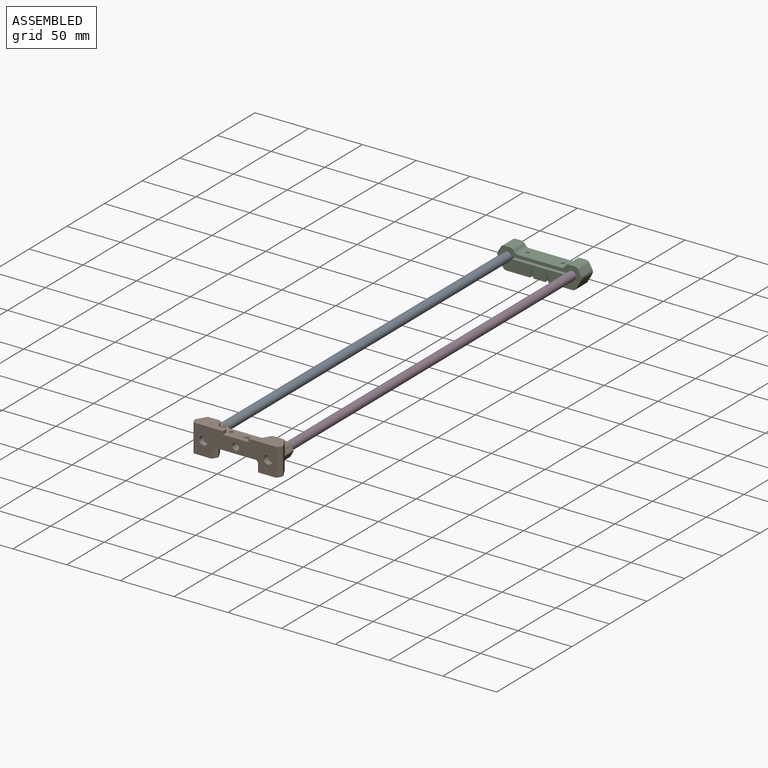
[diagram: assembled view]
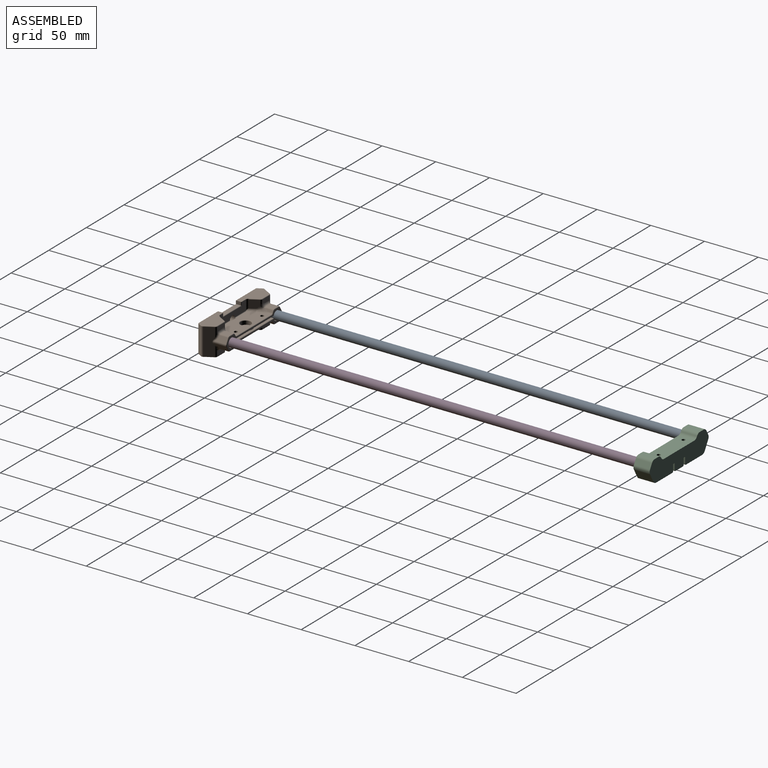
[diagram: assembled view, second angle]
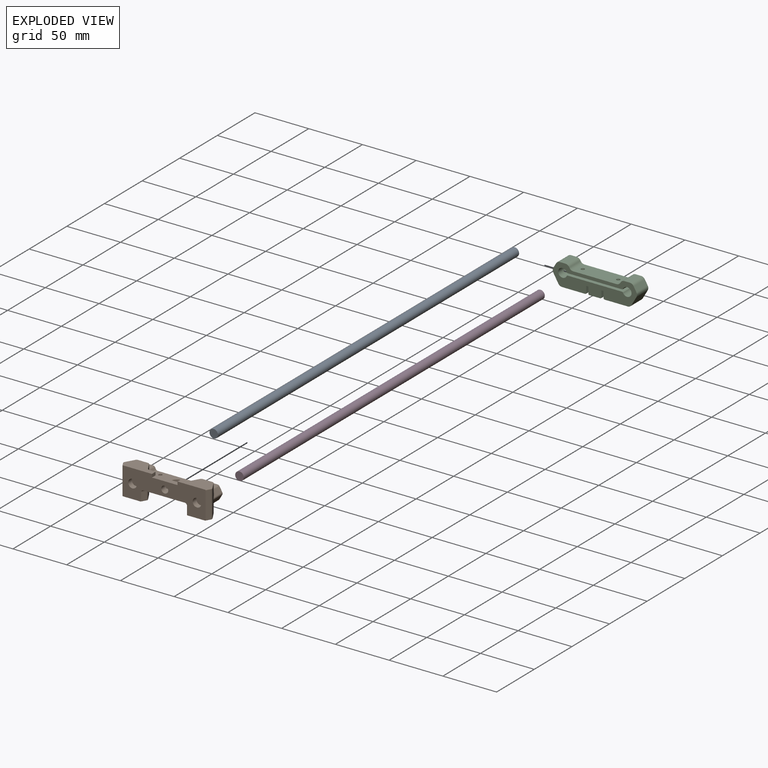
[diagram: exploded view]
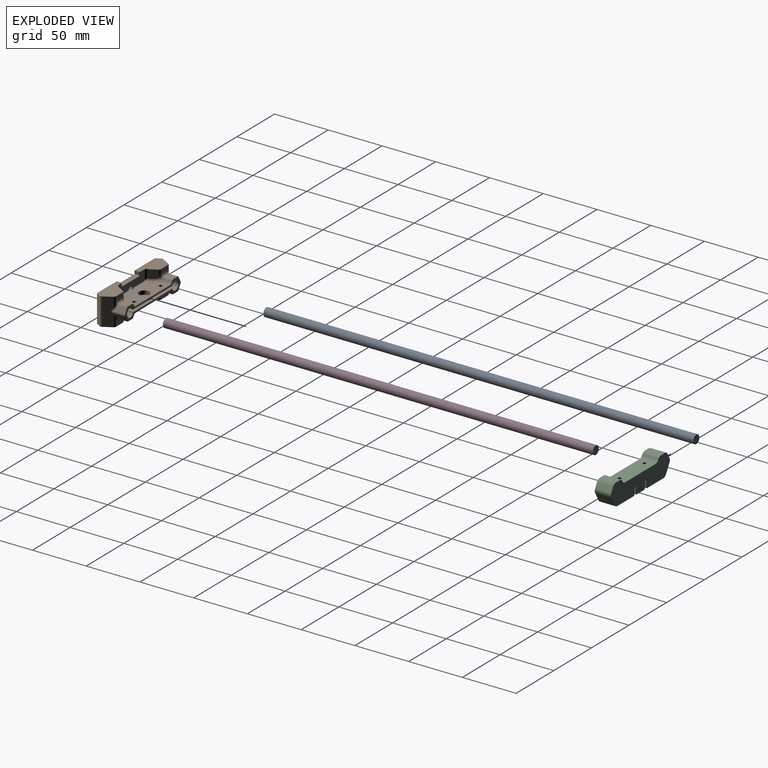
[diagram: exploded view, second angle]
ASSEMBLY  parts=4 mates=3
PART A: 3 faces, bbox 8x400x8 mm
  f0: plane 8x8mm, normal (0,-1,0), area 50.3mm2, adj f1
  f1: cylinder r=4mm len=400mm, axis (0,-1,0), area 10053.1mm2, adj f0,f2
  f2: plane 8x8mm, normal (0,1,0), area 50.3mm2, adj f1
PART B: 242 faces, bbox 83.3x26.5x28.1 mm
  f0: cylinder r=0.5mm len=12.6mm, axis (-1,0,0), area 9.9mm2, adj f4,f173,f178,f240
  f1: plane 77.81x26.49mm, normal (0,-1,0), area 1380.2mm2, adj f5,f6,f13,f14,f15,f16,f54,f58
  f2: cylinder r=0.5mm len=3.5mm, axis (0,0,1), area 2.6mm2, adj f4,f6,f14,f57
  f3: cylinder r=0.5mm len=3.5mm, axis (0,0,-1), area 2.6mm2, adj f4,f5,f15,f57
  f4: plane 34.6x9.5mm, normal (0,1,0), area 228.6mm2, adj f0,f2,f3,f9,f12,f14,f15,f57
  f5: plane 4.5x3mm, normal (-1,0,0), area 13.5mm2, adj f1,f3,f15,f58
  f6: plane 4.5x3mm, normal (1,0,0), area 13.5mm2, adj f1,f2,f14,f58
  f7: bspline ~1.75x1.67mm, area 0mm2, adj f8,f9,f14
  f8: bspline ~1.25x1.15mm, area 0.7mm2, adj f7,f14,f97,f107
  f9: cylinder r=2mm len=9.3mm, axis (0,0,-1), area 18.1mm2, adj f4,f7,f14,f107,f176
  f10: bspline ~1.75x1.67mm, area 0mm2, adj f11,f12,f15
  f11: bspline ~1.25x1.15mm, area 0.7mm2, adj f10,f15,f108,f115
  f12: cylinder r=2mm len=9.3mm, axis (0,0,-1), area 18.1mm2, adj f4,f10,f15,f115,f172
  f13: plane 21.48x14.5mm, normal (0,0,-1), area 251.1mm2, adj f1,f63,f64,f65,f66,f67,f68,f69
  f14: plane 29.57x14.58mm, normal (0,0,1), area 298.4mm2, adj f1,f2,f4,f6,f7,f8,f9,f97
  f15: plane 28.32x14.58mm, normal (0,0,1), area 292.1mm2, adj f1,f3,f4,f5,f10,f11,f12,f108
  f16: plane 21.48x14.5mm, normal (0,0,-1), area 251.1mm2, adj f1,f80,f81,f82,f83,f84,f85,f86
  f17: bspline ~2.89x1.69mm, area 3.3mm2, adj f18,f212,f214,f227
  f18: bspline ~5.17x2.2mm, area 5.8mm2, adj f17,f19,f215,f227
  f19: bspline ~5.17x2.66mm, area 9.3mm2, adj f18,f20,f54,f215
  f20: bspline ~5.25x4.76mm, area 11.2mm2, adj f19,f21,f54,f216
  f21: bspline ~5.14x3.53mm, area 9.4mm2, adj f20,f22,f77,f216
  f22: bspline ~5.69x2.51mm, area 8.3mm2, adj f21,f23,f76,f77
  f23: bspline ~5.69x2.03mm, area 6mm2, adj f22,f24,f75,f76
  f24: bspline ~4.33x3.66mm, area 7.6mm2, adj f23,f25,f75,f213
  f25: bspline ~4.33x1.9mm, area 5.1mm2, adj f24,f212,f213,f226
  f26: bspline ~4.33x3.66mm, area 7.6mm2, adj f27,f117,f199,f202
  f27: bspline ~5.69x2.03mm, area 6mm2, adj f26,f28,f116,f117
  f28: bspline ~5.69x2.51mm, area 8.3mm2, adj f27,f29,f115,f116
  f29: bspline ~5.14x3.53mm, area 9.4mm2, adj f28,f30,f115,f179
  f30: bspline ~5.25x4.76mm, area 11.2mm2, adj f29,f31,f178,f179
  f31: bspline ~5.17x2.66mm, area 9.3mm2, adj f30,f32,f178,f201
  f32: bspline ~5.17x2.2mm, area 5.8mm2, adj f31,f33,f201,f222
  f33: bspline ~2.89x1.68mm, area 3.3mm2, adj f32,f34,f200,f222
  f34: bspline ~3.16x2.89mm, area 3.6mm2, adj f33,f199,f200,f223
  f35: bspline ~2.89x1.69mm, area 3.3mm2, adj f36,f154,f155,f187
  f36: bspline ~5.17x2.2mm, area 5.8mm2, adj f35,f37,f153,f154
  f37: bspline ~5.17x2.66mm, area 9.3mm2, adj f36,f38,f153,f178
  f38: bspline ~5.25x4.76mm, area 11.2mm2, adj f37,f39,f177,f178
  f39: bspline ~5.14x3.53mm, area 9.4mm2, adj f38,f40,f107,f177
  f40: bspline ~5.69x2.51mm, area 8.3mm2, adj f39,f41,f106,f107
  f41: bspline ~5.69x2.03mm, area 6mm2, adj f40,f42,f105,f106
  f42: bspline ~4.33x3.66mm, area 7.6mm2, adj f41,f43,f105,f188
  f43: bspline ~4.33x1.9mm, area 5.1mm2, adj f42,f156,f187,f188
  f44: bspline ~4.33x3.66mm, area 7.6mm2, adj f45,f92,f183,f193
  f45: bspline ~5.69x2.03mm, area 6mm2, adj f44,f46,f91,f92
  f46: bspline ~5.69x2.51mm, area 8.3mm2, adj f45,f47,f90,f91
  f47: bspline ~5.14x3.53mm, area 9.4mm2, adj f46,f48,f90,f184
  f48: bspline ~5.25x4.76mm, area 11.2mm2, adj f47,f49,f54,f184
  f49: bspline ~5.17x2.66mm, area 9.3mm2, adj f48,f50,f54,f165
  f50: bspline ~5.17x2.2mm, area 5.8mm2, adj f49,f51,f164,f165
  f51: bspline ~2.89x1.68mm, area 3.3mm2, adj f50,f52,f163,f164
  f52: bspline ~3.16x2.89mm, area 3.6mm2, adj f51,f162,f163,f183
  f53: torus R=4mm, axis (0,0,1), area 18.2mm2, adj f54,f55
  f54: plane 46.16x24.52mm, normal (0,0,-1), area 923.1mm2, adj f1,f19,f20,f48,f49,f53,f59,f61
  f55: torus R=3mm, axis (0,0,-1), area 16.4mm2, adj f53,f56
  f56: plane 6x6mm, normal (0,0,-1), area 18.7mm2, adj f55,f239
  f57: cylinder r=0.5mm len=24.75mm, axis (-1,0,0), area 19mm2, adj f2,f3,f4,f58
  f58: plane 23.75x4.5mm, normal (0,0,1), area 106.9mm2, adj f1,f5,f6,f57
  f59: cylinder r=1.6mm len=3.2mm, axis (0,0,-1), area 20.1mm2, adj f54,f124
  f60: cylinder r=1.6mm len=3.2mm, axis (0,0,-1), area 20.1mm2, adj f122,f178
  f61: cylinder r=1.6mm len=3.2mm, axis (0,0,-1), area 20.1mm2, adj f54,f124
  f62: cylinder r=1.6mm len=3.2mm, axis (0,0,-1), area 20.1mm2, adj f122,f178
  f63: cylinder r=0.5mm len=4.5mm, axis (0.5,-0.87,0), area 3.7mm2, adj f1,f13,f64,f79
  f64: torus R=1.5mm, axis (0,0,1), area 1.5mm2, adj f13,f63,f65,f78
  f65: cylinder r=0.5mm len=8.25mm, axis (-0.5,-0.87,0), area 7.3mm2, adj f13,f64,f66,f77
  f66: torus R=1.5mm, axis (0,0,1), area 1.5mm2, adj f13,f65,f67,f76
  f67: cylinder r=0.5mm len=9.24mm, axis (-1,0,0), area 7.3mm2, adj f13,f66,f68,f75
  f68: torus R=1.5mm, axis (0,0,1), area 1.5mm2, adj f13,f67,f69,f74
  f69: cylinder r=0.5mm len=8.25mm, axis (-0.5,0.87,0), area 7.3mm2, adj f13,f68,f70,f73
  f70: torus R=1.5mm, axis (0,0,1), area 1.5mm2, adj f13,f69,f71,f72
  f71: cylinder r=0.5mm len=4.5mm, axis (0.5,0.87,0), area 3.7mm2, adj f1,f13,f70,f119
  f72: cylinder r=2mm len=25mm, axis (0,0,-1), area 52.4mm2, adj f70,f73,f113,f119
  f73: plane 25.04x8.04mm, normal (0.87,0.5,0), area 222.3mm2, adj f69,f72,f74,f112,f118,f203,f204,f206
  f74: cylinder r=2mm len=9.5mm, axis (0,0,1), area 14.4mm2, adj f68,f73,f75,f218,f220
  f75: plane 9.25x4.56mm, normal (0,1,0), area 35.7mm2, adj f23,f24,f67,f74,f76,f213,f219
  f76: cylinder r=2mm len=1.73mm, axis (0,0,1), area 2.8mm2, adj f22,f23,f66,f75,f77
  f77: plane 8.02x7.52mm, normal (-0.87,0.5,0), area 65.4mm2, adj f21,f22,f65,f76,f78,f216
  f78: cylinder r=2mm len=7.5mm, axis (0,0,1), area 15.7mm2, adj f64,f77,f79,f211
  f79: plane 7.5x4mm, normal (-0.87,-0.5,0), area 34.6mm2, adj f1,f63,f78,f217
  f80: cylinder r=0.5mm len=4.5mm, axis (0.5,-0.87,0), area 3.7mm2, adj f1,f16,f81,f96
  f81: torus R=1.5mm, axis (0,0,1), area 1.5mm2, adj f16,f80,f82,f95
  f82: cylinder r=0.5mm len=8.25mm, axis (-0.5,-0.87,0), area 7.3mm2, adj f16,f81,f83,f94
  f83: torus R=1.5mm, axis (0,0,1), area 1.5mm2, adj f16,f82,f84,f93
  f84: cylinder r=0.5mm len=9.24mm, axis (-1,0,0), area 7.3mm2, adj f16,f83,f85,f92
  f85: torus R=1.5mm, axis (0,0,1), area 1.5mm2, adj f16,f84,f86,f91
  f86: cylinder r=0.5mm len=8.25mm, axis (-0.5,0.87,0), area 7.3mm2, adj f16,f85,f87,f90
  f87: torus R=1.5mm, axis (0,0,1), area 1.5mm2, adj f16,f86,f88,f89
  f88: cylinder r=0.5mm len=4.5mm, axis (0.5,0.87,0), area 3.7mm2, adj f1,f16,f87,f198
  f89: cylinder r=2mm len=7.5mm, axis (0,0,1), area 15.7mm2, adj f87,f90,f182,f198
  f90: plane 8.02x7.52mm, normal (0.87,0.5,0), area 65.4mm2, adj f46,f47,f86,f89,f91,f184
  f91: cylinder r=2mm len=1.73mm, axis (0,0,1), area 2.8mm2, adj f45,f46,f85,f90,f92
  f92: plane 9.26x4.57mm, normal (0,1,0), area 35.7mm2, adj f44,f45,f84,f91,f93,f193,f195
  f93: cylinder r=2mm len=9.5mm, axis (0,0,1), area 14.4mm2, adj f83,f92,f94,f194,f196
  f94: plane 25.04x8.04mm, normal (-0.87,0.5,0), area 222.3mm2, adj f82,f93,f95,f101,f104,f185,f186,f189
  f95: cylinder r=2mm len=25mm, axis (0,0,1), area 52.4mm2, adj f81,f94,f96,f102
  f96: plane 25x4mm, normal (-0.87,-0.5,0), area 115.5mm2, adj f1,f80,f95,f103
  f97: cylinder r=0.5mm len=7mm, axis (0.5,-0.87,0), area 6.1mm2, adj f8,f14,f98,f107
  f98: torus R=1.5mm, axis (0,0,-1), area 1.5mm2, adj f14,f97,f99,f106
  f99: cylinder r=0.5mm len=9.24mm, axis (1,0,0), area 7.3mm2, adj f14,f98,f100,f105
  f100: torus R=1.5mm, axis (0,0,-1), area 1.5mm2, adj f14,f99,f101,f104
  f101: cylinder r=0.5mm len=8.25mm, axis (0.5,0.87,0), area 7.3mm2, adj f14,f94,f100,f102
  f102: torus R=1.5mm, axis (0,0,-1), area 1.5mm2, adj f14,f95,f101,f103
  f103: cylinder r=0.5mm len=4.5mm, axis (-0.5,0.87,0), area 3.7mm2, adj f1,f14,f96,f102
  f104: cylinder r=2mm len=9.5mm, axis (0,0,1), area 14.4mm2, adj f94,f100,f105,f191,f192
  f105: plane 9.25x4.56mm, normal (0,1,0), area 35.7mm2, adj f41,f42,f99,f104,f106,f188,f190
  f106: cylinder r=2mm len=1.73mm, axis (0,0,1), area 2.8mm2, adj f40,f41,f98,f105,f107
  f107: plane 8.02x7.85mm, normal (0.87,0.5,0), area 65.5mm2, adj f8,f9,f39,f40,f97,f106,f177
  f108: cylinder r=0.5mm len=7mm, axis (0.5,0.87,0), area 6.1mm2, adj f11,f15,f109,f115
  f109: torus R=1.5mm, axis (0,0,-1), area 1.5mm2, adj f15,f108,f110,f116
  f110: cylinder r=0.5mm len=9.24mm, axis (1,0,0), area 7.3mm2, adj f15,f109,f111,f117
  f111: torus R=1.5mm, axis (0,0,-1), area 1.5mm2, adj f15,f110,f112,f118
  f112: cylinder r=0.5mm len=8.25mm, axis (0.5,-0.87,0), area 7.3mm2, adj f15,f73,f111,f113
  f113: torus R=1.5mm, axis (0,0,-1), area 1.5mm2, adj f15,f72,f112,f114
  f114: cylinder r=0.5mm len=4.5mm, axis (-0.5,-0.87,0), area 3.7mm2, adj f1,f15,f113,f119
  f115: plane 8.02x7.85mm, normal (-0.87,0.5,0), area 65.5mm2, adj f11,f12,f28,f29,f108,f116,f179
  f116: cylinder r=2mm len=1.73mm, axis (0,0,1), area 2.8mm2, adj f27,f28,f109,f115,f117
  f117: plane 9.26x4.57mm, normal (0,1,0), area 35.7mm2, adj f26,f27,f110,f116,f118,f202,f207
  f118: cylinder r=2mm len=9.5mm, axis (0,0,1), area 14.4mm2, adj f73,f111,f117,f208,f209
  f119: plane 25x4mm, normal (0.87,-0.5,0), area 115.5mm2, adj f1,f71,f72,f114
  f120: torus R=6.5mm, axis (0,0,1), area 30.5mm2, adj f121,f122
  f121: cylinder r=6mm len=12mm, axis (0,0,1), area 37.7mm2, adj f120,f123
  f122: plane 52.05x19.5mm, normal (0,0,-1), area 767.3mm2, adj f60,f62,f120,f169,f171,f228,f230,f231
  f123: torus R=6.5mm, axis (0,0,-1), area 30.5mm2, adj f121,f124
  f124: plane 52.05x19.5mm, normal (0,0,1), area 772.4mm2, adj f59,f61,f123,f168,f171,f228,f230,f231
  f125: cylinder r=0.5mm len=46.14mm, axis (1,0,0), area 36.2mm2, adj f54,f126,f152,f166
  f126: torus R=2.5mm, axis (0,1,0), area 1.8mm2, adj f125,f127,f165,f166
  f127: cylinder r=0.5mm len=1.75mm, axis (0.5,0,0.87), area 1.4mm2, adj f126,f128,f164,f166
  f128: torus R=1.5mm, axis (0,-1,0), area 1.5mm2, adj f127,f129,f163,f166
  f129: cylinder r=0.5mm len=5.2mm, axis (1,0,0), area 4.1mm2, adj f128,f130,f162,f166
  f130: torus R=1.5mm, axis (0,-1,0), area 1.5mm2, adj f129,f131,f161,f166
  f131: cylinder r=0.5mm len=4.75mm, axis (0.5,0,-0.87), area 4.1mm2, adj f130,f132,f160,f166
  f132: torus R=1.5mm, axis (0,-1,0), area 1.5mm2, adj f131,f133,f159,f166
  f133: cylinder r=0.5mm len=4.75mm, axis (-0.5,0,-0.87), area 4.1mm2, adj f132,f134,f158,f166
  f134: torus R=1.5mm, axis (0,-1,0), area 1.5mm2, adj f133,f135,f157,f166
  f135: cylinder r=0.5mm len=5.2mm, axis (-1,0,0), area 4.1mm2, adj f134,f136,f156,f166
  f136: torus R=1.5mm, axis (0,-1,0), area 1.5mm2, adj f135,f137,f155,f166
  f137: cylinder r=0.5mm len=1.75mm, axis (-0.5,0,0.87), area 1.4mm2, adj f136,f138,f154,f166
  f138: torus R=2.5mm, axis (0,1,0), area 1.8mm2, adj f137,f139,f153,f166
  f139: cylinder r=0.5mm len=46.14mm, axis (-1,0,0), area 36.2mm2, adj f138,f140,f166,f178
  f140: torus R=2.5mm, axis (0,1,0), area 1.8mm2, adj f139,f141,f166,f201
  f141: cylinder r=0.5mm len=1.75mm, axis (-0.5,0,-0.87), area 1.4mm2, adj f140,f142,f166,f222
  f142: torus R=1.5mm, axis (0,-1,0), area 1.5mm2, adj f141,f143,f166,f200
  f143: cylinder r=0.5mm len=5.2mm, axis (-1,0,0), area 4.1mm2, adj f142,f144,f166,f223
  f144: torus R=1.5mm, axis (0,-1,0), area 1.5mm2, adj f143,f145,f166,f210
  f145: cylinder r=0.5mm len=4.75mm, axis (-0.5,0,0.87), area 4.1mm2, adj f144,f146,f166,f224
  f146: torus R=1.5mm, axis (0,-1,0), area 1.5mm2, adj f145,f147,f166,f205
  f147: cylinder r=0.5mm len=4.75mm, axis (0.5,0,0.87), area 4.1mm2, adj f146,f148,f166,f225
  f148: torus R=1.5mm, axis (0,-1,0), area 1.5mm2, adj f147,f149,f166,f221
  f149: cylinder r=0.5mm len=5.2mm, axis (1,0,0), area 4.1mm2, adj f148,f150,f166,f226
  f150: torus R=1.5mm, axis (0,-1,0), area 1.5mm2, adj f149,f151,f166,f214
  f151: cylinder r=0.5mm len=1.75mm, axis (0.5,0,-0.87), area 1.4mm2, adj f150,f152,f166,f227
  f152: torus R=2.5mm, axis (0,1,0), area 1.8mm2, adj f125,f151,f166,f215
  f153: cylinder r=2mm len=3.57mm, axis (0,-1,0), area 7.5mm2, adj f36,f37,f138,f154,f178
  f154: plane 6.48x1.54mm, normal (0.87,0,0.5), area 10mm2, adj f35,f36,f137,f153,f155
  f155: cylinder r=2mm len=5.85mm, axis (0,1,0), area 12.3mm2, adj f35,f136,f154,f156,f187
  f156: plane 7.5x5.2mm, normal (0,0,1), area 38.4mm2, adj f43,f135,f155,f157,f187,f188
  f157: cylinder r=2mm len=7.77mm, axis (0,1,0), area 15.8mm2, adj f134,f156,f158,f190,f192
  f158: plane 10.52x4.52mm, normal (-0.87,0,0.5), area 45.6mm2, adj f133,f157,f159,f189,f191
  f159: cylinder r=2mm len=10.5mm, axis (0,1,0), area 22mm2, adj f132,f158,f160,f185
  f160: plane 10.52x4.52mm, normal (-0.87,0,-0.5), area 45.6mm2, adj f131,f159,f161,f186,f194
  f161: cylinder r=2mm len=7.77mm, axis (0,1,0), area 15.8mm2, adj f130,f160,f162,f195,f196
  f162: plane 7.5x5.2mm, normal (0,0,-1), area 38.4mm2, adj f52,f129,f161,f163,f183,f193
  f163: cylinder r=2mm len=5.85mm, axis (0,1,0), area 12.3mm2, adj f51,f52,f128,f162,f164
  f164: plane 6.49x1.55mm, normal (0.87,0,-0.5), area 10mm2, adj f50,f51,f127,f163,f165
  f165: cylinder r=2mm len=3.57mm, axis (0,-1,0), area 7.5mm2, adj f49,f50,f54,f126,f164
  f166: plane 73.39x12mm, normal (0,1,0), area 201.6mm2, adj f125,f126,f127,f128,f129,f130,f131,f132
  f167: torus R=4.6mm, axis (0,-1,0), area 19.2mm2, adj f166,f168,f169,f171
  f168: cylinder r=0.5mm len=52.05mm, axis (-1,0,0), area 40.6mm2, adj f124,f166,f167,f170
  f169: cylinder r=0.5mm len=52.05mm, axis (1,0,0), area 40.6mm2, adj f122,f166,f167,f170
  f170: torus R=4.6mm, axis (0,-1,0), area 19.2mm2, adj f166,f168,f169,f234
  f171: cylinder r=4.1mm len=9.5mm, axis (0,-1,0), area 225.5mm2, adj f122,f124,f167,f232
  f172: bspline ~1.73x1.73mm, area 0.6mm2, adj f12,f173,f179
  f173: bspline ~1.08x0.7mm, area 0.7mm2, adj f0,f4,f172,f179
  f174: cylinder r=0.5mm len=13.85mm, axis (-1,0,0), area 10.9mm2, adj f4,f175,f178,f240
  f175: bspline ~1.08x0.7mm, area 0.7mm2, adj f4,f174,f176,f177
  f176: bspline ~1.73x1.73mm, area 0.6mm2, adj f9,f175,f177
  f177: cylinder r=2mm len=7.12mm, axis (0.5,-0.87,0), area 19.7mm2, adj f38,f39,f107,f175,f176,f178
  f178: plane 46.16x19.02mm, normal (0,0,1), area 686.3mm2, adj f0,f30,f31,f37,f38,f60,f62,f139
  f179: cylinder r=2mm len=7.12mm, axis (0.5,0.87,0), area 19.7mm2, adj f29,f30,f115,f172,f173,f178
  f180: torus R=5.35mm, axis (0,0,-1), area 24.8mm2, adj f178,f181
  f181: cylinder r=4.85mm len=9.7mm, axis (0,0,1), area 100.6mm2, adj f180,f229
  f182: torus R=4mm, axis (0,0,1), area 9mm2, adj f54,f89,f184,f197
  f183: bspline ~4.33x1.9mm, area 5.1mm2, adj f44,f52,f162,f193
  f184: cylinder r=2mm len=5.62mm, axis (-0.5,0.87,0), area 16.8mm2, adj f47,f48,f54,f90,f182
  f185: bspline ~4x2.25mm, area 4.5mm2, adj f94,f159,f186,f189
  f186: cylinder r=2mm len=2mm, axis (-0.38,-0.65,0.65), area 2.2mm2, adj f94,f160,f185,f194
  f187: bspline ~3.16x2.89mm, area 3.6mm2, adj f35,f43,f155,f156
  f188: cylinder r=2mm len=3.55mm, axis (1,0,0), area 11.1mm2, adj f42,f43,f105,f156,f190
  f189: cylinder r=2mm len=2mm, axis (0.38,0.65,0.65), area 2.2mm2, adj f94,f158,f185,f191
  f190: torus R=4mm, axis (0,1,0), area 4.5mm2, adj f105,f157,f188,f192
  f191: bspline ~4.5x2.73mm, area 7.9mm2, adj f104,f158,f189,f192
  f192: bspline ~2.45x2.13mm, area 3.2mm2, adj f104,f157,f190,f191
  f193: cylinder r=2mm len=3.55mm, axis (-1,0,0), area 11.1mm2, adj f44,f92,f162,f183,f195
  f194: bspline ~4.5x2.73mm, area 7.9mm2, adj f93,f160,f186,f196
  f195: torus R=4mm, axis (0,1,0), area 4.5mm2, adj f92,f161,f193,f196
  f196: bspline ~2.45x2.13mm, area 3.2mm2, adj f93,f161,f194,f195
  f197: cylinder r=2mm len=5mm, axis (-0.5,-0.87,0), area 12.7mm2, adj f1,f54,f182,f198
  f198: plane 7.5x4mm, normal (0.87,-0.5,0), area 34.6mm2, adj f1,f88,f89,f197
  f199: bspline ~4.33x1.9mm, area 5.1mm2, adj f26,f34,f202,f223
  f200: cylinder r=2mm len=5.85mm, axis (0,1,0), area 12.3mm2, adj f33,f34,f142,f222,f223
  f201: cylinder r=2mm len=3.57mm, axis (0,-1,0), area 7.5mm2, adj f31,f32,f140,f178,f222
  f202: cylinder r=2mm len=3.55mm, axis (1,0,0), area 11.1mm2, adj f26,f117,f199,f207,f223
  f203: bspline ~4x2.25mm, area 4.5mm2, adj f73,f204,f205,f206
  f204: cylinder r=2mm len=2mm, axis (-0.38,0.65,-0.65), area 2.2mm2, adj f73,f203,f218,f225
  f205: cylinder r=2mm len=10.5mm, axis (0,1,0), area 22mm2, adj f146,f203,f224,f225
  f206: cylinder r=2mm len=2mm, axis (0.38,-0.65,-0.65), area 2.2mm2, adj f73,f203,f208,f224
  f207: torus R=4mm, axis (0,-1,0), area 4.5mm2, adj f117,f202,f209,f210
  f208: bspline ~4.5x2.73mm, area 7.9mm2, adj f118,f206,f209,f224
  f209: bspline ~2.45x2.13mm, area 3.2mm2, adj f118,f207,f208,f210
  f210: cylinder r=2mm len=7.77mm, axis (0,1,0), area 15.8mm2, adj f144,f207,f209,f223,f224
  f211: torus R=4mm, axis (0,0,-1), area 9mm2, adj f54,f78,f216,f217
  f212: bspline ~3.16x2.89mm, area 3.6mm2, adj f17,f25,f214,f226
  f213: cylinder r=2mm len=3.55mm, axis (-1,0,0), area 11.1mm2, adj f24,f25,f75,f219,f226
  f214: cylinder r=2mm len=5.85mm, axis (0,1,0), area 12.3mm2, adj f17,f150,f212,f226,f227
  f215: cylinder r=2mm len=3.57mm, axis (0,-1,0), area 7.5mm2, adj f18,f19,f54,f152,f227
  f216: cylinder r=2mm len=5.62mm, axis (-0.5,-0.87,0), area 16.8mm2, adj f20,f21,f54,f77,f211
  f217: cylinder r=2mm len=5mm, axis (-0.5,0.87,0), area 12.7mm2, adj f1,f54,f79,f211
  f218: bspline ~4.5x2.73mm, area 7.9mm2, adj f74,f204,f220,f225
  f219: torus R=4mm, axis (0,-1,0), area 4.5mm2, adj f75,f213,f220,f221
  f220: bspline ~2.45x2.13mm, area 3.2mm2, adj f74,f218,f219,f221
  f221: cylinder r=2mm len=7.77mm, axis (0,1,0), area 15.8mm2, adj f148,f219,f220,f225,f226
  f222: plane 6.49x1.55mm, normal (-0.87,0,0.5), area 10mm2, adj f32,f33,f141,f200,f201
  f223: plane 7.5x5.2mm, normal (0,0,1), area 38.4mm2, adj f34,f143,f199,f200,f202,f210
  f224: plane 10.52x4.52mm, normal (0.87,0,0.5), area 45.6mm2, adj f145,f205,f206,f208,f210
  f225: plane 10.52x4.52mm, normal (0.87,0,-0.5), area 45.6mm2, adj f147,f204,f205,f218,f221
  f226: plane 7.5x5.2mm, normal (0,0,-1), area 38.4mm2, adj f25,f149,f212,f213,f214,f221
  f227: plane 6.48x1.54mm, normal (-0.87,0,-0.5), area 10mm2, adj f17,f18,f151,f214,f215
  f228: plane 36.91x2mm, normal (0,1,0), area 69.3mm2, adj f122,f124,f231,f233,f240
  f229: plane 9.7x9.7mm, normal (0,0,1), area 64.3mm2, adj f181,f239
  f230: plane 9.87x8.2mm, normal (0,1,0), area 56.2mm2, adj f122,f124,f231,f234
  f231: plane 10x5.77mm, normal (0.87,0.5,0), area 23.1mm2, adj f122,f124,f228,f230
  f232: plane 9.87x8.2mm, normal (0,1,0), area 56.2mm2, adj f122,f124,f171,f233
  f233: plane 10x5.77mm, normal (-0.87,0.5,0), area 23.1mm2, adj f122,f124,f228,f232
  f234: cylinder r=4.1mm len=9.5mm, axis (0,-1,0), area 225.5mm2, adj f122,f124,f170,f230
  f235: cylinder r=4mm len=8mm, axis (0,-1,0), area 125.7mm2, adj f1,f236
  f236: plane 8x8mm, normal (0,-1,0), area 50.3mm2, adj f235
  f237: cylinder r=4mm len=8mm, axis (0,-1,0), area 125.7mm2, adj f1,f238
  f238: plane 8x8mm, normal (0,-1,0), area 50.3mm2, adj f237
  f239: cylinder r=1.75mm len=3.5mm, axis (0,0,1), area 35.2mm2, adj f56,f229
  f240: cylinder r=3.25mm len=6.5mm, axis (0,-1,0), area 106.7mm2, adj f0,f1,f4,f122,f174,f178,f228,f241
  f241: plane 6.5x2mm, normal (0,-1,0), area 12.1mm2, adj f122,f178,f240
PART C: 61 faces, bbox 78.4x15x20.5 mm
  f0: plane 3x2.85mm, normal (0.5,0.87,0), area 9.9mm2, adj f1,f5,f6,f56
  f1: plane 3.29x3mm, normal (1,0,0), area 9.9mm2, adj f0,f2,f6,f56
  f2: plane 3x2.85mm, normal (0.5,-0.87,0), area 9.9mm2, adj f1,f3,f6,f56
  f3: plane 3x2.85mm, normal (-0.5,-0.87,0), area 9.9mm2, adj f2,f4,f6,f56
  f4: plane 3.29x3mm, normal (-1,0,0), area 9.9mm2, adj f3,f5,f6,f56
  f5: plane 3x2.85mm, normal (-0.5,0.87,0), area 9.9mm2, adj f0,f4,f6,f56
  f6: plane 6.58x5.7mm, normal (0,0,-1), area 20.1mm2, adj f0,f1,f2,f3,f4,f5,f17
  f7: plane 3x2.85mm, normal (0.5,0.87,0), area 9.9mm2, adj f8,f12,f13,f34
  f8: plane 3.29x3mm, normal (1,0,0), area 9.9mm2, adj f7,f9,f13,f34
  f9: plane 3x2.85mm, normal (0.5,-0.87,0), area 9.9mm2, adj f8,f10,f13,f34
  f10: plane 3x2.85mm, normal (-0.5,-0.87,0), area 9.9mm2, adj f9,f11,f13,f34
  f11: plane 3.29x3mm, normal (-1,0,0), area 9.9mm2, adj f10,f12,f13,f34
  f12: plane 3x2.85mm, normal (-0.5,0.87,0), area 9.9mm2, adj f7,f11,f13,f34
  f13: plane 6.58x5.7mm, normal (0,0,-1), area 20.1mm2, adj f7,f8,f9,f10,f11,f12,f15
  f14: cylinder r=1.6mm len=3.2mm, axis (0,0,-1), area 30.2mm2, adj f24,f46
  f15: cylinder r=1.6mm len=8mm, axis (0,0,-1), area 80.4mm2, adj f13,f22
  f16: cylinder r=1.6mm len=3.2mm, axis (0,0,-1), area 30.2mm2, adj f24,f46
  f17: cylinder r=1.6mm len=8mm, axis (0,0,-1), area 80.4mm2, adj f6,f22
  f18: cylinder r=1mm len=10mm, axis (0,-1,0), area 11.7mm2, adj f19,f20,f24,f57
  f19: cylinder r=4.1mm len=10mm, axis (0,1,0), area 224.6mm2, adj f18,f20,f21,f57
  f20: plane 78.39x20.5mm, normal (0,-1,0), area 1049.7mm2, adj f18,f19,f21,f22,f23,f24,f25,f26
  f21: cylinder r=1mm len=10mm, axis (0,-1,0), area 11.7mm2, adj f19,f20,f22,f57
  f22: plane 50.62x10mm, normal (0,0,1), area 490.1mm2, adj f15,f17,f20,f21,f25,f57
  f23: cylinder r=1mm len=10mm, axis (0,-1,0), area 11.7mm2, adj f20,f24,f57,f58
  f24: plane 50.62x10mm, normal (0,0,-1), area 490.1mm2, adj f14,f16,f18,f20,f23,f57
  f25: cylinder r=1mm len=10mm, axis (0,-1,0), area 11.7mm2, adj f20,f22,f57,f58
  f26: cylinder r=1mm len=15mm, axis (0,1,0), area 23.6mm2, adj f20,f27,f28,f56
  f27: plane 15x6mm, normal (1,0,0), area 90mm2, adj f20,f26,f28,f52
  f28: plane 78.39x20.5mm, normal (0,1,0), area 1259.4mm2, adj f26,f27,f29,f30,f31,f32,f33,f34
  f29: cylinder r=1mm len=15mm, axis (0,-1,0), area 23.6mm2, adj f20,f28,f30,f53
  f30: plane 15x10mm, normal (0,0,-1), area 150mm2, adj f20,f28,f29,f31
  f31: cylinder r=1mm len=15mm, axis (0,1,0), area 23.6mm2, adj f20,f28,f30,f32
  f32: plane 15x6mm, normal (1,0,0), area 90mm2, adj f20,f28,f31,f54
  f33: cylinder r=1mm len=15mm, axis (0,-1,0), area 23.6mm2, adj f20,f28,f34,f55
  f34: plane 21.58x15mm, normal (0,0,-1), area 295.5mm2, adj f7,f8,f9,f10,f11,f12,f20,f28
  f35: cylinder r=4mm len=15mm, axis (0,-1,0), area 62.8mm2, adj f20,f28,f34,f36
  f36: plane 15x8mm, normal (0.87,0,-0.5), area 138.6mm2, adj f20,f28,f35,f48
  f37: cylinder r=4mm len=15mm, axis (0,-1,0), area 62.8mm2, adj f20,f28,f38,f56
  f38: plane 15x8mm, normal (-0.87,0,-0.5), area 138.6mm2, adj f20,f28,f37,f39
  f39: cylinder r=4mm len=15mm, axis (0,-1,0), area 62.8mm2, adj f20,f28,f38,f60
  f40: cylinder r=4mm len=15mm, axis (0,1,0), area 62.8mm2, adj f20,f28,f41,f46
  f41: plane 15x0.5mm, normal (-0.87,0,0.5), area 8.7mm2, adj f20,f28,f40,f47
  f42: cylinder r=4mm len=15mm, axis (0,-1,0), area 62.8mm2, adj f20,f28,f43,f60
  f43: plane 15x5.2mm, normal (0,0,1), area 77.9mm2, adj f20,f28,f42,f44
  f44: cylinder r=4mm len=15mm, axis (0,-1,0), area 62.8mm2, adj f20,f28,f43,f59
  f45: cylinder r=4mm len=15mm, axis (0,1,0), area 62.8mm2, adj f20,f28,f46,f59
  f46: plane 40.37x15mm, normal (0,0,1), area 589.5mm2, adj f14,f16,f20,f28,f40,f45
  f47: cylinder r=4mm len=15mm, axis (0,-1,0), area 62.8mm2, adj f20,f28,f41,f51
  f48: cylinder r=4mm len=15mm, axis (0,-1,0), area 62.8mm2, adj f20,f28,f36,f49
  f49: plane 15x4.5mm, normal (0.87,0,0.5), area 77.9mm2, adj f20,f28,f48,f50
  f50: cylinder r=4mm len=15mm, axis (0,-1,0), area 62.8mm2, adj f20,f28,f49,f51
  f51: plane 15x5.2mm, normal (0,0,1), area 77.9mm2, adj f20,f28,f47,f50
  f52: plane 15x2mm, normal (0,0,-1), area 30mm2, adj f20,f27,f28,f53
  f53: plane 15x6mm, normal (-1,0,0), area 90mm2, adj f20,f28,f29,f52
  f54: plane 15x2mm, normal (0,0,-1), area 30mm2, adj f20,f28,f32,f55
  f55: plane 15x6mm, normal (-1,0,0), area 90mm2, adj f20,f28,f33,f54
  f56: plane 21.58x15mm, normal (0,0,-1), area 295.5mm2, adj f0,f1,f2,f3,f4,f5,f20,f26
  f57: plane 68.2x8.2mm, normal (0,-1,0), area 209.7mm2, adj f18,f19,f21,f22,f23,f24,f25,f58
  f58: cylinder r=4.1mm len=10mm, axis (0,1,0), area 224.6mm2, adj f20,f23,f25,f57
  f59: plane 15x0.5mm, normal (0.87,0,0.5), area 8.7mm2, adj f20,f28,f44,f45
  f60: plane 15x4.5mm, normal (-0.87,0,0.5), area 77.9mm2, adj f20,f28,f39,f42
PART D: same geometry as A
PLACE A t=(-127.02,113.42,-71.03)mm
PLACE B t=(-126.72,113.42,-71.03)mm
PLACE C t=(-127.02,113.42,-71.03)mm fixed
PLACE D t=(-67.02,113.42,-71.03)mm
MATE fastened C.f58 <-> D.f1  axis (0,-1,0) through (-109.8,323.71,-2.85)mm
MATE fastened C.f19 <-> A.f1  axis (0,-1,0) through (-169.8,323.71,-2.85)mm
MATE fastened B.f232 <-> D.f1  axis (0,1,0) through (-109.8,-76.29,-2.85)mm
